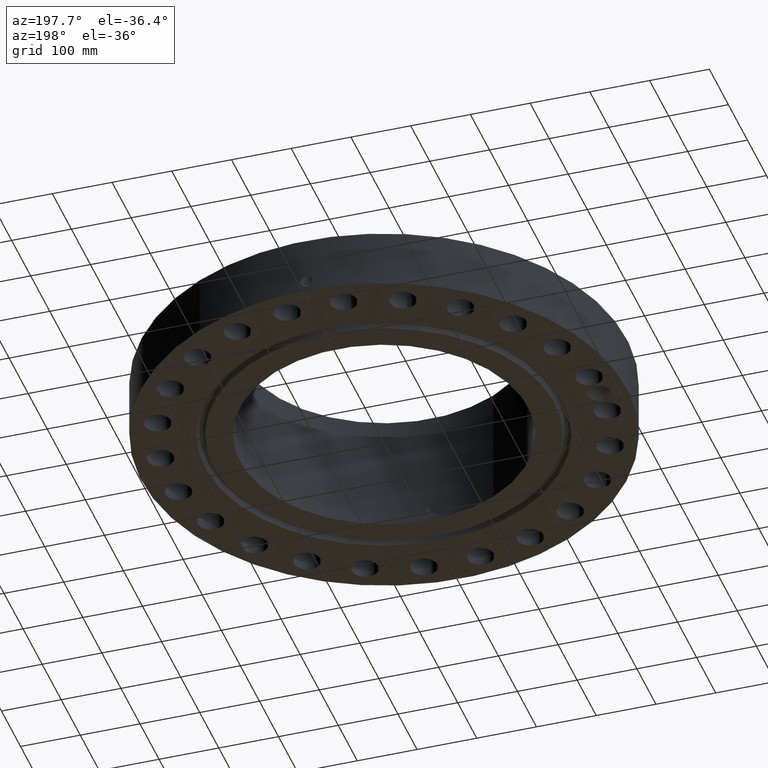
[diagram: clean part render]
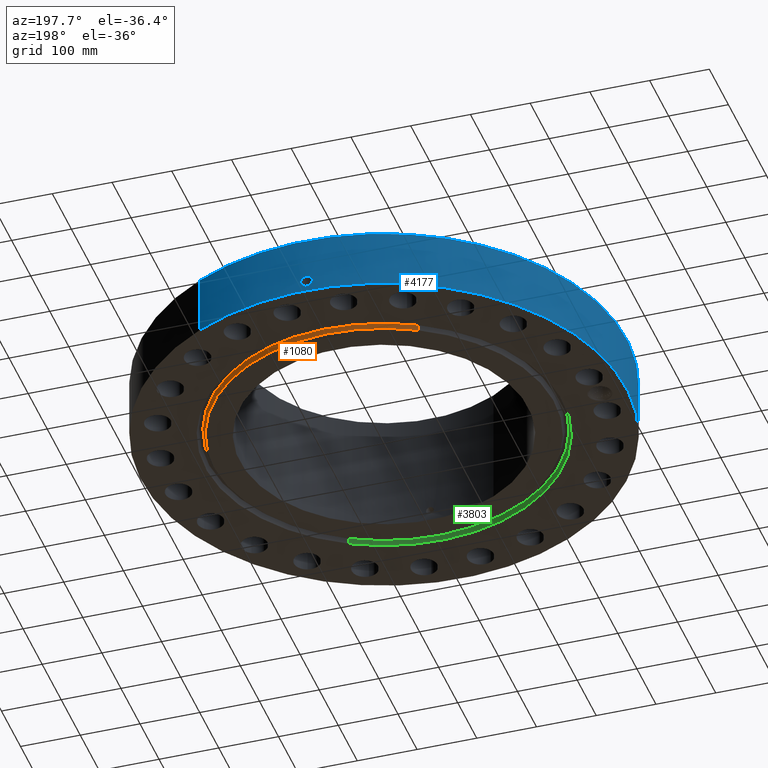
[diagram: same view with three faces highlighted in distinct colors, each labeled with its STEP entity id]
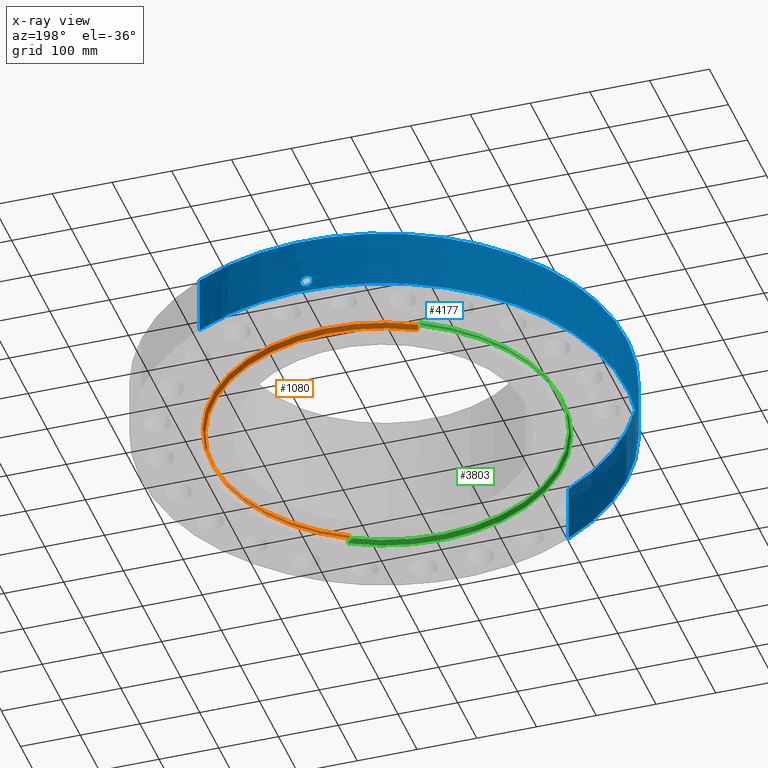
[diagram: x-ray of the same camera — body ghosted, the three highlighted faces saturated]
A machine part, auxiliary view with three faces highlighted in distinct colors.
The next image is the same camera in x-ray (body ghosted, the three faces saturated) — at least one of them is partly hidden behind the body in this view.
Their STEP definitions:

[orange] entity #1080 — the highlighted conical surface has half-angle 23 deg.
#602=AXIS2_PLACEMENT_3D('Circle Axis2P3D',#600,#601,$) ;
#1053=AXIS2_PLACEMENT_3D('Cone Axis2P3D',#1050,#1051,#1052) ;
#1064=AXIS2_PLACEMENT_3D('Circle Axis2P3D',#1062,#1063,$) ;
#600=CARTESIAN_POINT('Axis2P3D Location',(0.,0.,0.)) ;
#604=CARTESIAN_POINT('Vertex',(-5.38610621347,9.8592012916,3.40934629609E-016)) ;
#606=CARTESIAN_POINT('Vertex',(5.38610621347,-9.8592012916,0.)) ;
#1050=CARTESIAN_POINT('Axis2P3D Location',(0.,0.,-0.0600000000002)) ;
#1055=CARTESIAN_POINT('Line Origine',(-5.4205435653,9.92223844129,0.169221933855)) ;
#1059=CARTESIAN_POINT('Vertex',(-5.45498091713,9.98527559098,0.338443867711)) ;
#1062=CARTESIAN_POINT('Axis2P3D Location',(0.,0.,0.338443867711)) ;
#1066=CARTESIAN_POINT('Vertex',(5.45498091713,-9.98527559098,0.338443867711)) ;
#1069=CARTESIAN_POINT('Line Origine',(5.4205435653,-9.92223844129,0.169221933855)) ;
#601=DIRECTION('Axis2P3D Direction',(0.,0.,-0.0393700787402)) ;
#1051=DIRECTION('Axis2P3D Direction',(0.,0.,0.0393700787402)) ;
#1052=DIRECTION('Axis2P3D XDirection',(-0.0188750212049,0.0345504945626,0.)) ;
#1056=DIRECTION('Vector Direction',(-0.00737505833565,0.0134999537303,0.0362403485611)) ;
#1063=DIRECTION('Axis2P3D Direction',(0.,0.,0.0393700787402)) ;
#1070=DIRECTION('Vector Direction',(0.00737505833565,-0.0134999537303,0.0362403485611)) ;
#1057=VECTOR('Line Direction',#1056,0.0393700787402) ;
#1071=VECTOR('Line Direction',#1070,0.0393700787402) ;
#1075=ORIENTED_EDGE('',*,*,#1061,.F.) ;
#1076=ORIENTED_EDGE('',*,*,#1068,.F.) ;
#1077=ORIENTED_EDGE('',*,*,#1073,.T.) ;
#1078=ORIENTED_EDGE('',*,*,#608,.F.) ;
#1080=ADVANCED_FACE('PartBody',(#1079),#1054,.T.) ;
#603=CIRCLE('generated circle',#602,11.2345) ;
#1065=CIRCLE('generated circle',#1064,11.3781608986) ;
#1054=CONICAL_SURFACE('Cone',#1053,11.2090315111,0.401425727959) ;
#608=EDGE_CURVE('',#605,#607,#603,.T.) ;
#1061=EDGE_CURVE('',#1060,#605,#1058,.F.) ;
#1068=EDGE_CURVE('',#1067,#1060,#1065,.T.) ;
#1073=EDGE_CURVE('',#1067,#607,#1072,.F.) ;
#1074=EDGE_LOOP('',(#1075,#1076,#1077,#1078)) ;
#1079=FACE_OUTER_BOUND('',#1074,.T.) ;
#1058=LINE('Line',#1055,#1057) ;
#1072=LINE('Line',#1069,#1071) ;
#605=VERTEX_POINT('',#604) ;
#607=VERTEX_POINT('',#606) ;
#1060=VERTEX_POINT('',#1059) ;
#1067=VERTEX_POINT('',#1066) ;

[blue] entity #4177 — the highlighted cylindrical surface (partial cylindrical patch) has radius 406.4 mm, axis along (0, 0, -1).
#2927=AXIS2_PLACEMENT_3D('Circle Axis2P3D',#2925,#2926,$) ;
#4063=AXIS2_PLACEMENT_3D('Cylinder Axis2P3D',#4060,#4061,#4062) ;
#4067=AXIS2_PLACEMENT_3D('Circle Axis2P3D',#4065,#4066,$) ;
#2920=CARTESIAN_POINT('Vertex',(7.6708086177,14.0413209903,3.87500000002)) ;
#2922=CARTESIAN_POINT('Vertex',(-7.6708086177,-14.0413209903,3.87500000002)) ;
#2925=CARTESIAN_POINT('Axis2P3D Location',(0.,0.,3.87500000002)) ;
#4060=CARTESIAN_POINT('Axis2P3D Location',(0.,0.,3.93750000002)) ;
#4065=CARTESIAN_POINT('Axis2P3D Location',(0.,0.,1.67844740731E-015)) ;
#4069=CARTESIAN_POINT('Vertex',(-7.6708086177,-14.0413209903,1.67844740731E-015)) ;
#4071=CARTESIAN_POINT('Vertex',(7.6708086177,14.0413209903,1.67844740731E-015)) ;
#4074=CARTESIAN_POINT('Line Origine',(-7.6708086177,-14.0413209903,1.93750000001)) ;
#4079=CARTESIAN_POINT('Line Origine',(7.6708086177,14.0413209903,1.93750000001)) ;
#4091=CARTESIAN_POINT('Control Point',(-0.000716008386403,15.999999984,1.10411846139)) ;
#4092=CARTESIAN_POINT('Control Point',(-0.0189154325742,15.9999991696,1.1040817082)) ;
#4093=CARTESIAN_POINT('Control Point',(-0.0371116867317,15.9999670598,1.10263811945)) ;
#4094=CARTESIAN_POINT('Control Point',(-0.0550890318218,15.9999051622,1.09980498088)) ;
#4095=CARTESIAN_POINT('Vertex',(-0.000715672256008,15.9999999841,1.10411851063)) ;
#4097=CARTESIAN_POINT('Vertex',(-0.0550803065232,15.999905444,1.09980637388)) ;
#4101=CARTESIAN_POINT('Control Point',(-0.0550802118814,15.9999051926,1.09980582858)) ;
#4102=CARTESIAN_POINT('Control Point',(-0.0955969838548,15.9997657123,1.09541327921)) ;
#4103=CARTESIAN_POINT('Control Point',(-0.135483074497,15.9994685863,1.0836543616)) ;
#4104=CARTESIAN_POINT('Control Point',(-0.172232896312,15.9990729679,1.0653007981)) ;
#4105=CARTESIAN_POINT('Vertex',(-0.172232896312,15.9990729679,1.0653007981)) ;
#4109=CARTESIAN_POINT('Control Point',(-0.0310649567399,15.9999698428,0.341193018259)) ;
#4110=CARTESIAN_POINT('Control Point',(-0.0962765262087,15.9998432304,0.349443757762)) ;
#4111=CARTESIAN_POINT('Control Point',(-0.159435222325,15.9993883715,0.371295261087)) ;
#4112=CARTESIAN_POINT('Control Point',(-0.216604655642,15.9986524433,0.406092532921)) ;
#4113=CARTESIAN_POINT('Control Point',(-0.292161661733,15.9973970214,0.477062028054)) ;
#4114=CARTESIAN_POINT('Control Point',(-0.340748175347,15.9963833302,0.565879201879)) ;
#4115=CARTESIAN_POINT('Control Point',(-0.354565893224,15.9960757286,0.60010180176)) ;
#4116=CARTESIAN_POINT('Control Point',(-0.375131941694,15.9956053363,0.675080917021)) ;
#4117=CARTESIAN_POINT('Control Point',(-0.376942949453,15.9955577989,0.752370184958)) ;
#4118=CARTESIAN_POINT('Control Point',(-0.372580085593,15.9956631169,0.792943340905)) ;
#4119=CARTESIAN_POINT('Control Point',(-0.350060892555,15.9961923171,0.885658349069)) ;
#4120=CARTESIAN_POINT('Control Point',(-0.300399921892,15.9972222194,0.967192321284)) ;
#4121=CARTESIAN_POINT('Control Point',(-0.263624814222,15.9979099405,1.00825222817)) ;
#4122=CARTESIAN_POINT('Control Point',(-0.220118864063,15.9985574668,1.04138562457)) ;
#4123=CARTESIAN_POINT('Control Point',(-0.172232896312,15.9990729679,1.0653007981)) ;
#4124=CARTESIAN_POINT('Vertex',(-0.0310649567399,15.9999698428,0.341193018259)) ;
#4128=CARTESIAN_POINT('Control Point',(-0.0310649567399,15.9999698428,0.341193018259)) ;
#4129=CARTESIAN_POINT('Control Point',(-0.020705174629,15.999989957,0.34087511048)) ;
#4130=CARTESIAN_POINT('Control Point',(-0.0103376437744,16.0000000018,0.340935838154)) ;
#4131=CARTESIAN_POINT('Control Point',(2.72878357803E-006,16.0000000001,0.341374667805)) ;
#4132=CARTESIAN_POINT('Vertex',(2.72878353824E-006,16.0000000001,0.341374667805)) ;
#4136=CARTESIAN_POINT('Control Point',(0.19258388645,15.9988409408,0.397488708576)) ;
#4137=CARTESIAN_POINT('Control Point',(0.148989688979,15.9993657001,0.372084856057)) ;
#4138=CARTESIAN_POINT('Control Point',(0.101113495132,15.9997843131,0.353795317007)) ;
#4139=CARTESIAN_POINT('Control Point',(0.0508044903952,15.9999999914,0.343530615089)) ;
#4140=CARTESIAN_POINT('Control Point',(2.72878349276E-006,16.0000000001,0.341374667805)) ;
#4141=CARTESIAN_POINT('Vertex',(0.19258388645,15.9988409408,0.397488708576)) ;
#4145=CARTESIAN_POINT('Control Point',(0.19258388645,15.9988409408,0.397488708576)) ;
#4146=CARTESIAN_POINT('Control Point',(0.249383493126,15.9981572232,0.430587807935)) ;
#4147=CARTESIAN_POINT('Control Point',(0.299389171266,15.9973031853,0.475008490786)) ;
#4148=CARTESIAN_POINT('Control Point',(0.3394524256,15.9964366393,0.529171991541)) ;
#4149=CARTESIAN_POINT('Control Point',(0.383556872993,15.9954112295,0.627406953463)) ;
#4150=CARTESIAN_POINT('Control Point',(0.392034107967,15.9951951609,0.732688684406)) ;
#4151=CARTESIAN_POINT('Control Point',(0.389882999819,15.9952493329,0.772870036436)) ;
#4152=CARTESIAN_POINT('Control Point',(0.37566658573,15.9956011091,0.847792699327)) ;
#4153=CARTESIAN_POINT('Control Point',(0.343489946901,15.9963246888,0.916234875172)) ;
#4154=CARTESIAN_POINT('Control Point',(0.324394424432,15.9967324358,0.946657275654)) ;
#4155=CARTESIAN_POINT('Control Point',(0.26272103559,15.9979362201,1.02288492954)) ;
#4156=CARTESIAN_POINT('Control Point',(0.179727431419,15.9991319704,1.07573360298)) ;
#4157=CARTESIAN_POINT('Control Point',(0.121118275666,15.99971795,1.0977016688)) ;
#4158=CARTESIAN_POINT('Control Point',(0.0600802735687,16.0000000972,1.10709991283)) ;
#4159=CARTESIAN_POINT('Control Point',(-2.58579355615E-005,16.,1.1041529843)) ;
#4160=CARTESIAN_POINT('Vertex',(-2.58579355482E-005,16.,1.1041529843)) ;
#4164=CARTESIAN_POINT('Control Point',(-0.000715672246441,15.9999999841,1.10411851061)) ;
#4165=CARTESIAN_POINT('Control Point',(-0.000370789664234,15.9999999995,1.10413607272)) ;
#4166=CARTESIAN_POINT('Control Point',(-2.585794055E-005,16.,1.1041529843)) ;
#2926=DIRECTION('Axis2P3D Direction',(0.,0.,-0.0393700787402)) ;
#4061=DIRECTION('Axis2P3D Direction',(0.,0.,-0.0393700787402)) ;
#4062=DIRECTION('Axis2P3D XDirection',(0.0188750212049,0.0345504945626,0.)) ;
#4066=DIRECTION('Axis2P3D Direction',(0.,0.,-0.0393700787402)) ;
#4075=DIRECTION('Vector Direction',(0.,0.,-0.0393700787402)) ;
#4080=DIRECTION('Vector Direction',(0.,0.,-0.0393700787402)) ;
#4076=VECTOR('Line Direction',#4075,0.0393700787402) ;
#4081=VECTOR('Line Direction',#4080,0.0393700787402) ;
#4085=ORIENTED_EDGE('',*,*,#4073,.F.) ;
#4086=ORIENTED_EDGE('',*,*,#4078,.T.) ;
#4087=ORIENTED_EDGE('',*,*,#2929,.T.) ;
#4088=ORIENTED_EDGE('',*,*,#4083,.F.) ;
#4169=ORIENTED_EDGE('',*,*,#4099,.T.) ;
#4170=ORIENTED_EDGE('',*,*,#4107,.T.) ;
#4171=ORIENTED_EDGE('',*,*,#4126,.F.) ;
#4172=ORIENTED_EDGE('',*,*,#4134,.T.) ;
#4173=ORIENTED_EDGE('',*,*,#4143,.F.) ;
#4174=ORIENTED_EDGE('',*,*,#4162,.T.) ;
#4175=ORIENTED_EDGE('',*,*,#4167,.F.) ;
#4176=FACE_BOUND('',#4168,.T.) ;
#4177=ADVANCED_FACE('PartBody',(#4089,#4176),#4064,.T.) ;
#4090=B_SPLINE_CURVE_WITH_KNOTS('',3,(#4091,#4092,#4093,#4094),.UNSPECIFIED.,.F.,.U.,(4,4),(34.6166522527,36.6357054806),.UNSPECIFIED.) ;
#4100=B_SPLINE_CURVE_WITH_KNOTS('',3,(#4101,#4102,#4103,#4104),.UNSPECIFIED.,.F.,.U.,(4,4),(0.,4.57930786065),.UNSPECIFIED.) ;
#4108=B_SPLINE_CURVE_WITH_KNOTS('',5,(#4109,#4110,#4111,#4112,#4113,#4114,#4115,#4116,#4117,#4118,#4119,#4120,#4121,#4122,#4123),.UNSPECIFIED.,.F.,.U.,(6,3,3,3,6),(0.,11.4233522536,17.9912598429,25.343610181,35.2885381696),.UNSPECIFIED.) ;
#4127=B_SPLINE_CURVE_WITH_KNOTS('',3,(#4128,#4129,#4130,#4131),.UNSPECIFIED.,.F.,.U.,(4,4),(0.,1.08068987329),.UNSPECIFIED.) ;
#4135=B_SPLINE_CURVE_WITH_KNOTS('',4,(#4136,#4137,#4138,#4139,#4140),.UNSPECIFIED.,.F.,.U.,(5,5),(0.,7.07917100308),.UNSPECIFIED.) ;
#4144=B_SPLINE_CURVE_WITH_KNOTS('',5,(#4145,#4146,#4147,#4148,#4149,#4150,#4151,#4152,#4153,#4154,#4155,#4156,#4157,#4158,#4159),.UNSPECIFIED.,.F.,.U.,(6,3,3,3,6),(0.,11.5294620754,18.6151346564,25.0414217569,36.2765053453),.UNSPECIFIED.) ;
#4163=B_SPLINE_CURVE_WITH_KNOTS('',2,(#4164,#4165,#4166),.UNSPECIFIED.,.F.,.U.,(3,3),(1.02033615425,1.04612611494),.UNSPECIFIED.) ;
#2928=CIRCLE('generated circle',#2927,16.0000000001) ;
#4068=CIRCLE('generated circle',#4067,16.0000000001) ;
#4064=CYLINDRICAL_SURFACE('generated cylinder',#4063,16.0000000001) ;
#2929=EDGE_CURVE('',#2923,#2921,#2928,.T.) ;
#4073=EDGE_CURVE('',#4070,#4072,#4068,.T.) ;
#4078=EDGE_CURVE('',#4070,#2923,#4077,.F.) ;
#4083=EDGE_CURVE('',#4072,#2921,#4082,.F.) ;
#4099=EDGE_CURVE('',#4096,#4098,#4090,.T.) ;
#4107=EDGE_CURVE('',#4098,#4106,#4100,.T.) ;
#4126=EDGE_CURVE('',#4125,#4106,#4108,.T.) ;
#4134=EDGE_CURVE('',#4125,#4133,#4127,.T.) ;
#4143=EDGE_CURVE('',#4142,#4133,#4135,.T.) ;
#4162=EDGE_CURVE('',#4142,#4161,#4144,.T.) ;
#4167=EDGE_CURVE('',#4096,#4161,#4163,.T.) ;
#4084=EDGE_LOOP('',(#4085,#4086,#4087,#4088)) ;
#4168=EDGE_LOOP('',(#4169,#4170,#4171,#4172,#4173,#4174,#4175)) ;
#4089=FACE_OUTER_BOUND('',#4084,.T.) ;
#4077=LINE('Line',#4074,#4076) ;
#4082=LINE('Line',#4079,#4081) ;
#2921=VERTEX_POINT('',#2920) ;
#2923=VERTEX_POINT('',#2922) ;
#4070=VERTEX_POINT('',#4069) ;
#4072=VERTEX_POINT('',#4071) ;
#4096=VERTEX_POINT('',#4095) ;
#4098=VERTEX_POINT('',#4097) ;
#4106=VERTEX_POINT('',#4105) ;
#4125=VERTEX_POINT('',#4124) ;
#4133=VERTEX_POINT('',#4132) ;
#4142=VERTEX_POINT('',#4141) ;
#4161=VERTEX_POINT('',#4160) ;

[green] entity #3803 — the highlighted conical surface has half-angle 23 deg.
#2635=AXIS2_PLACEMENT_3D('Circle Axis2P3D',#2633,#2634,$) ;
#3764=AXIS2_PLACEMENT_3D('Cone Axis2P3D',#3761,#3762,#3763) ;
#3794=AXIS2_PLACEMENT_3D('Circle Axis2P3D',#3792,#3793,$) ;
#2611=CARTESIAN_POINT('Vertex',(5.57180647081,-10.1991233326,0.338443867711)) ;
#2613=CARTESIAN_POINT('Vertex',(-5.57180647081,10.1991233326,0.338443867711)) ;
#2633=CARTESIAN_POINT('Axis2P3D Location',(0.,0.,0.338443867711)) ;
#3761=CARTESIAN_POINT('Axis2P3D Location',(0.,0.,0.338443867711)) ;
#3770=CARTESIAN_POINT('Vertex',(-5.64068117447,10.325197632,0.)) ;
#3772=CARTESIAN_POINT('Vertex',(5.64068117447,-10.325197632,-1.95818864186E-015)) ;
#3775=CARTESIAN_POINT('Line Origine',(5.60624382264,-10.2621604823,0.169221933855)) ;
#3780=CARTESIAN_POINT('Line Origine',(-5.60624382264,10.2621604823,0.169221933855)) ;
#3792=CARTESIAN_POINT('Axis2P3D Location',(0.,0.,0.)) ;
#2634=DIRECTION('Axis2P3D Direction',(0.,0.,0.0393700787402)) ;
#3762=DIRECTION('Axis2P3D Direction',(-0.,-0.,-0.0393700787402)) ;
#3763=DIRECTION('Axis2P3D XDirection',(0.0188750212049,-0.0345504945626,0.)) ;
#3776=DIRECTION('Vector Direction',(0.00737505833565,-0.0134999537303,-0.0362403485611)) ;
#3781=DIRECTION('Vector Direction',(-0.00737505833565,0.0134999537303,-0.0362403485611)) ;
#3793=DIRECTION('Axis2P3D Direction',(0.,0.,-0.0393700787402)) ;
#3777=VECTOR('Line Direction',#3776,0.0393700787402) ;
#3782=VECTOR('Line Direction',#3781,0.0393700787402) ;
#3798=ORIENTED_EDGE('',*,*,#3796,.T.) ;
#3799=ORIENTED_EDGE('',*,*,#3784,.T.) ;
#3800=ORIENTED_EDGE('',*,*,#2637,.T.) ;
#3801=ORIENTED_EDGE('',*,*,#3779,.F.) ;
#3803=ADVANCED_FACE('PartBody',(#3802),#3765,.F.) ;
#2636=CIRCLE('generated circle',#2635,11.6218391015) ;
#3795=CIRCLE('generated circle',#3794,11.7655) ;
#3765=CONICAL_SURFACE('Cone',#3764,11.6218391015,0.401425727959) ;
#2637=EDGE_CURVE('',#2614,#2612,#2636,.T.) ;
#3779=EDGE_CURVE('',#3773,#2612,#3778,.F.) ;
#3784=EDGE_CURVE('',#3771,#2614,#3783,.F.) ;
#3796=EDGE_CURVE('',#3773,#3771,#3795,.T.) ;
#3797=EDGE_LOOP('',(#3798,#3799,#3800,#3801)) ;
#3802=FACE_OUTER_BOUND('',#3797,.T.) ;
#3778=LINE('Line',#3775,#3777) ;
#3783=LINE('Line',#3780,#3782) ;
#2612=VERTEX_POINT('',#2611) ;
#2614=VERTEX_POINT('',#2613) ;
#3771=VERTEX_POINT('',#3770) ;
#3773=VERTEX_POINT('',#3772) ;